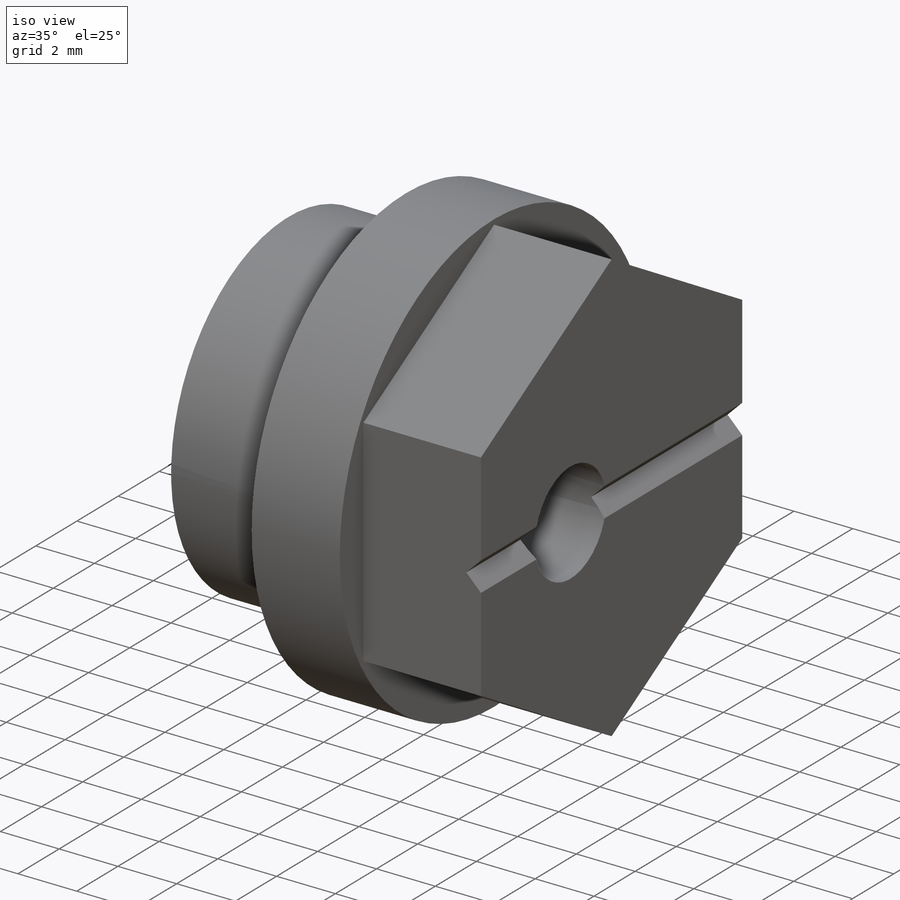
[diagram: iso view]
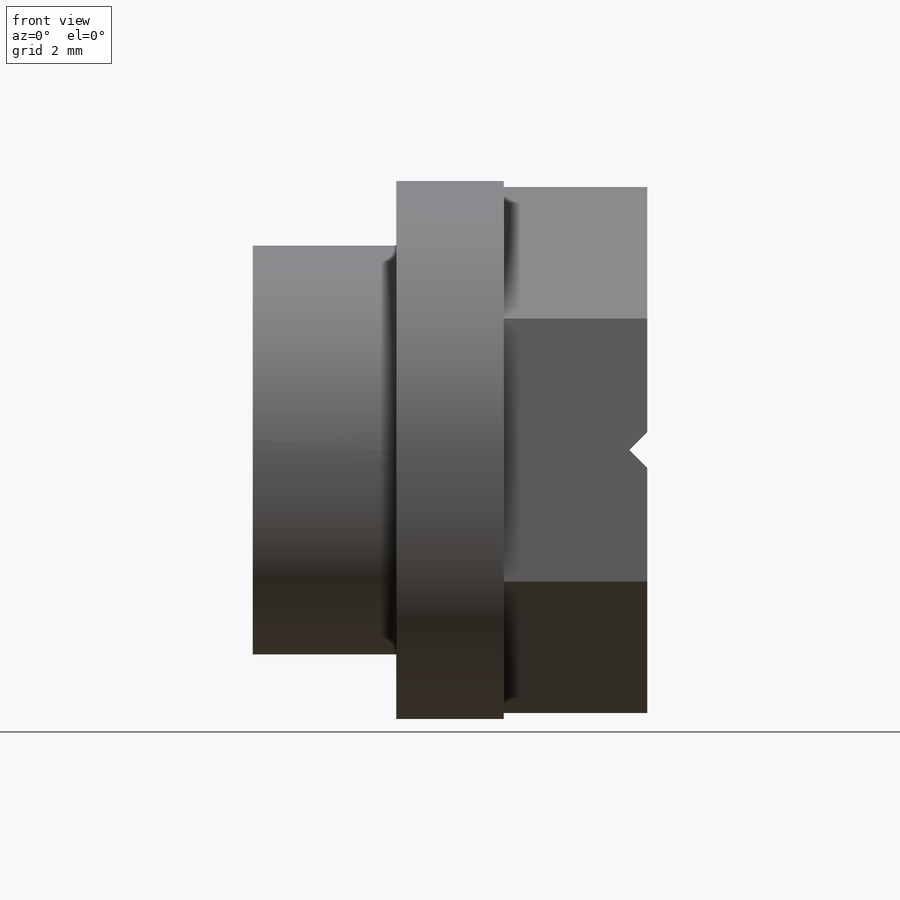
[diagram: front view]
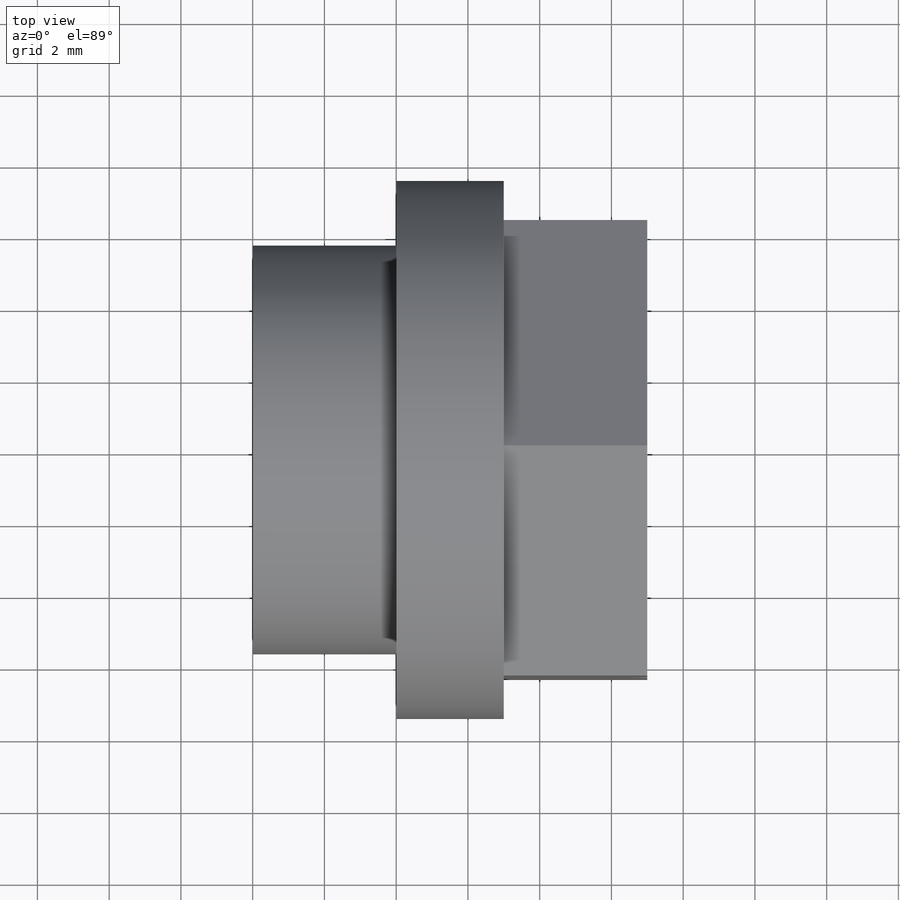
[diagram: top view]
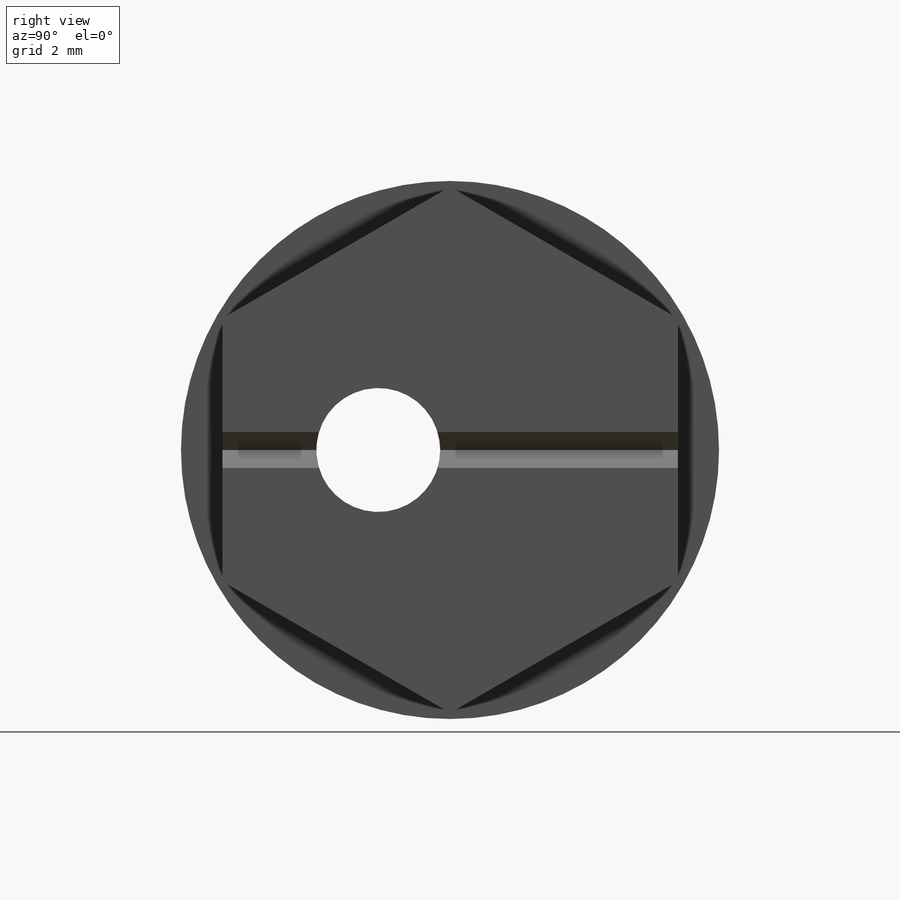
[diagram: right view]
SOLIDWORKS PART (.sldprt)
format: sldprt  version: not decoded by parser v0  size: 258,560 bytes
history: native  units: mm
features: sketch x8, extrude x2, hole x2, material x1, revolve x1, cut_extrude x1, thread x1 (+11 scaffold rows collapsed)
feature tree (27):
  scaffold x11  (default folders/planes/origin — collapsed)
  material  "Phosphor bronze 10% D, UNS C52400"
  sketch  "Sketch1"  dims[D1=3.0mm D2=7.5mm]
  revolve  "Revolve1"  Angle=360deg
  sketch  "Sketch2"  dims[D1=6.35mm D2=6.35mm D3=~3.666174mm D4=~7.332348mm D5=~3.666174mm D6=~7.332348mm]
  extrude  "Boss-Extrude1"  Depth=4mm
  sketch  "Sketch3"  dims[D1=3.5mm D2=4.0mm D3=~3.166174mm D4=~3.666174mm D5=~4.166174mm]
  cut_extrude  "Cut-Extrude1"  Depth=12.7mm
  sketch  "Sketch4"  dims[D1=11.4mm]
  extrude  "Boss-Extrude2"  Depth=4mm
  hole  "CBORE for #5 Button Head Cap Screw1"  Diameter=1.5875mm Depth=11mm
  sketch  "Sketch6"
  sketch  "Sketch5"  dims[hole-wizard template sketch: 41 standard entries collapsed; hole parameters kept: c12.Thru Hole Dia.=1.5875mm c12.Thru Hole Depth=11.0mm c12.C'Bore Dia.=6.6mm c12.C'Bore Depth=7.9375mm]
  hole  "#8-32 Tapped Hole1"  Diameter=3.4544mm Depth=11mm
  sketch  "Sketch8"
  sketch  "Sketch7"  dims[hole-wizard template sketch: 60 standard entries collapsed; hole parameters kept: c18.Thru Tap Drill Depth=11.0mm]
  thread  "Hole Thread1"  Diameter=6mm  [1 undecoded]
decode coverage: 13 of 15 modeling features carry decoded parameters
note: ~ marks probable driven/reference dimensions
note: 1 parameter value undecoded
note: suppression state not decoded; provenance and decode notes live in map.json
